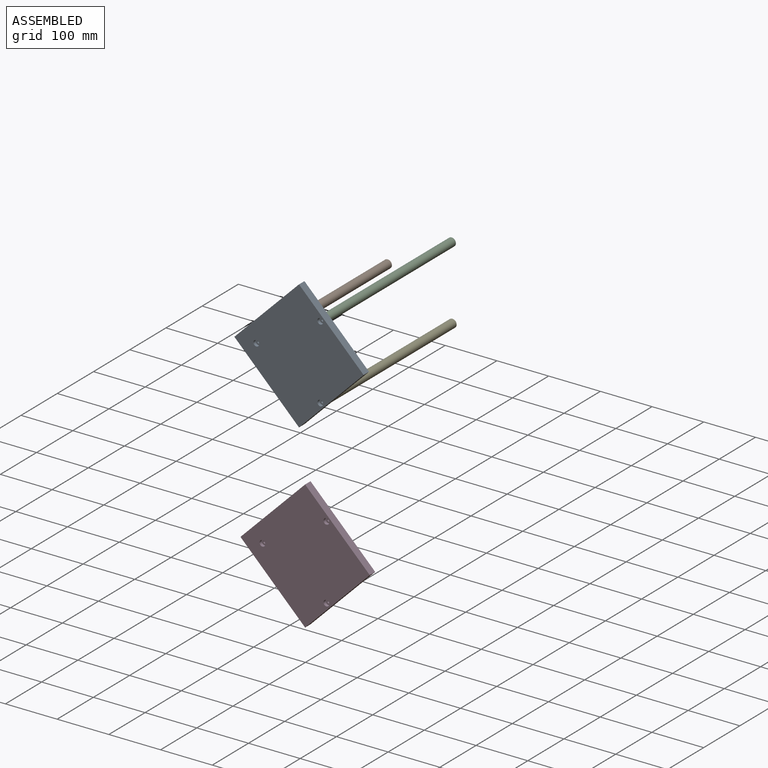
[diagram: assembled view]
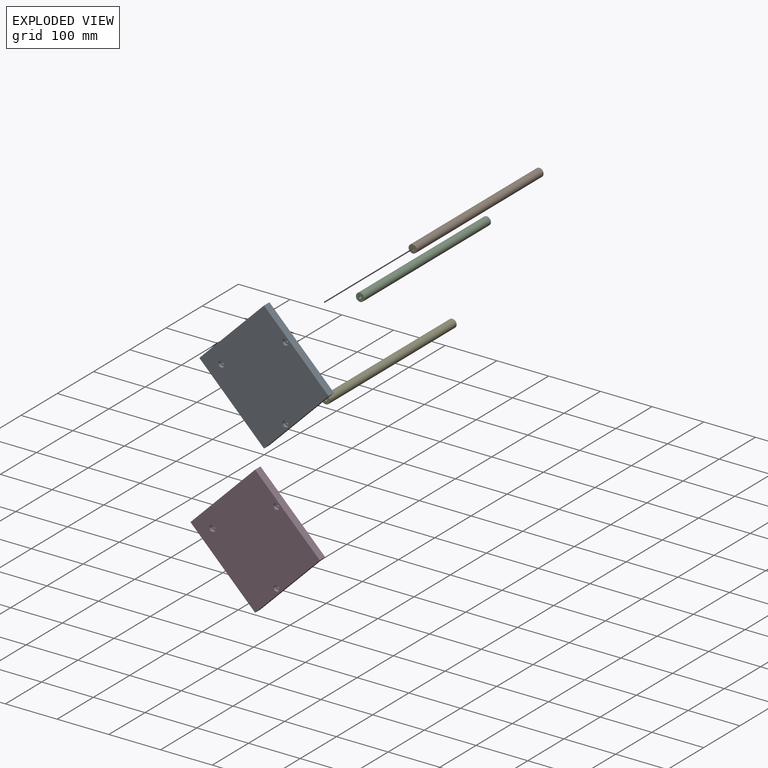
[diagram: exploded view]
GUIDED TOUR — MATED ASSEMBLY (Onshape document 1a43d66f72f9471675fd5f61, AutoMate assembly 1a43d66f72f9471675fd5f61_7ecb94784913f9cb2dae54af_32f8b393ca050b679fe28a52_default)

This assembly has 5 components, labeled P0..P4 below (a component is one placed occurrence of a part; the same part can appear more than once), held together by 3 mates. A mate is a constraint between two components; its type names the relative motion it leaves free:
  FASTENED — locks the two components together rigidly (no relative motion).
Axis/direction vectors are unit vectors and 'through' points are millimeter coordinates, both in the assembly's world frame.

MATES
  1. FASTENED "Fastened 1": P1 <-> P0, direction (0.000, -1.000, 0.000) through (-188.54, -96.07, -30.63) mm
  2. FASTENED "Fastened 3": P4 <-> P0, direction (0.000, 1.000, 0.000) through (-64.79, -94.07, -102.08) mm
  3. FASTENED "Fastened 2": P2 <-> P0, direction (0.000, -1.000, 0.000) through (-64.79, -96.07, 40.81) mm

ASSEMBLY ORDER
  1. P4 — the base component [order verified]
  2. P2 [order verified]
  3. P1 [order verified]
  4. P0 [order verified]
  5. P3 [order verified]
Order-tag legend:
  [order verified] — this step's position reverses a verified removal order: the component was checked to insert without passing through the ones already placed.

Of the 5 components, 5 carry the full construction recipe — the FeatureScript program that regenerates the part's solid from scratch; the rest are supplied as boundary geometry only.
Each toured component is shown spotlighted twice — in the assembled view, then in the exploded view, where a leader line traces a displaced component back to its assembled socket (saturated green if recipe-attached, orange if geometry-only; every other component desaturated gray) — followed by its recipe or geometry summary and the mates that hold it.
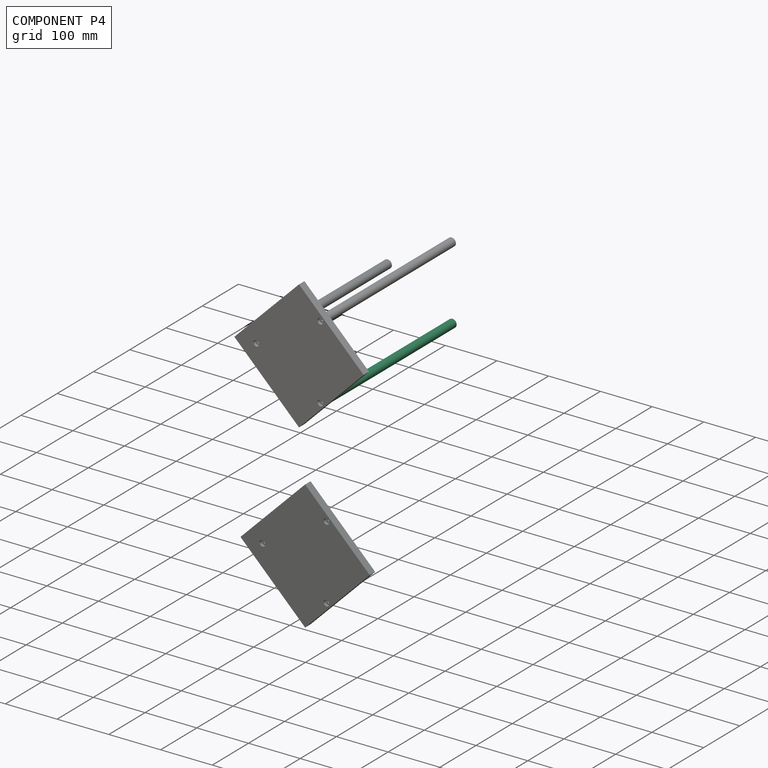
[diagram: component P4 — assembled]
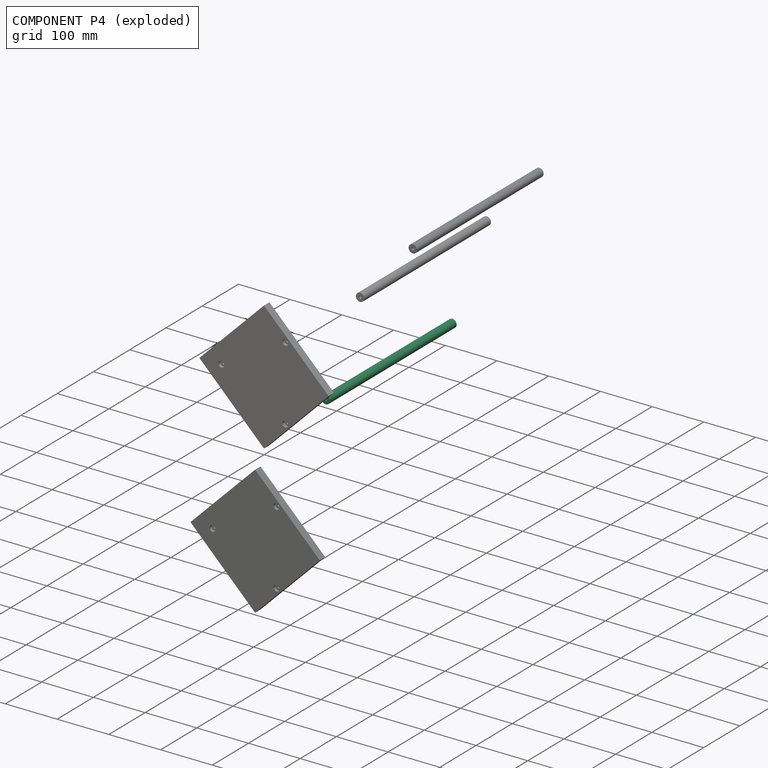
[diagram: component P4 — exploded]
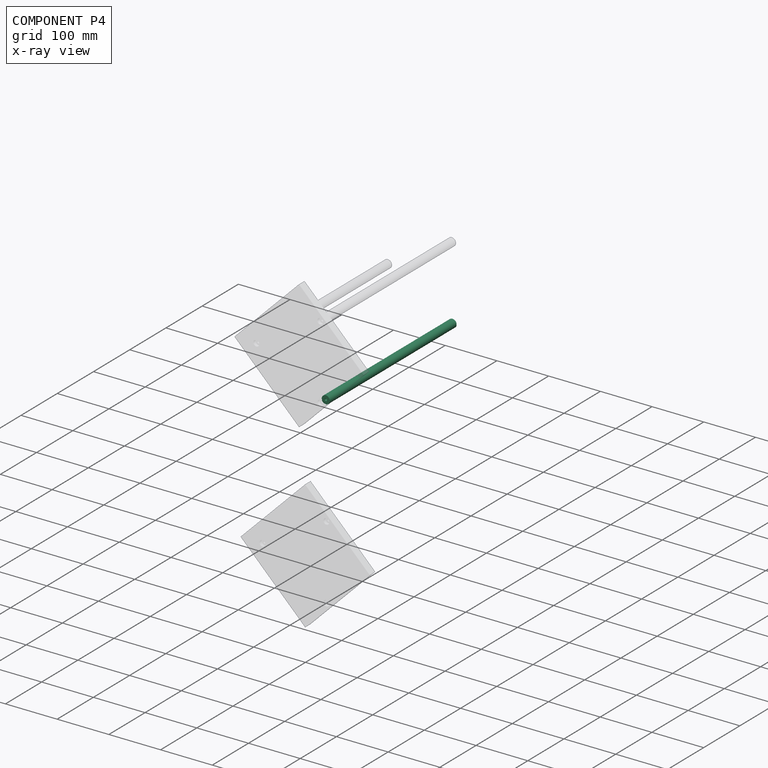
[diagram: component P4 — x-ray view]
COMPONENT P4 — same part as P1 (CADFS 00329744); its construction recipe is shown at P1.
Held by: FASTENED mate "Fastened 3" to P0.
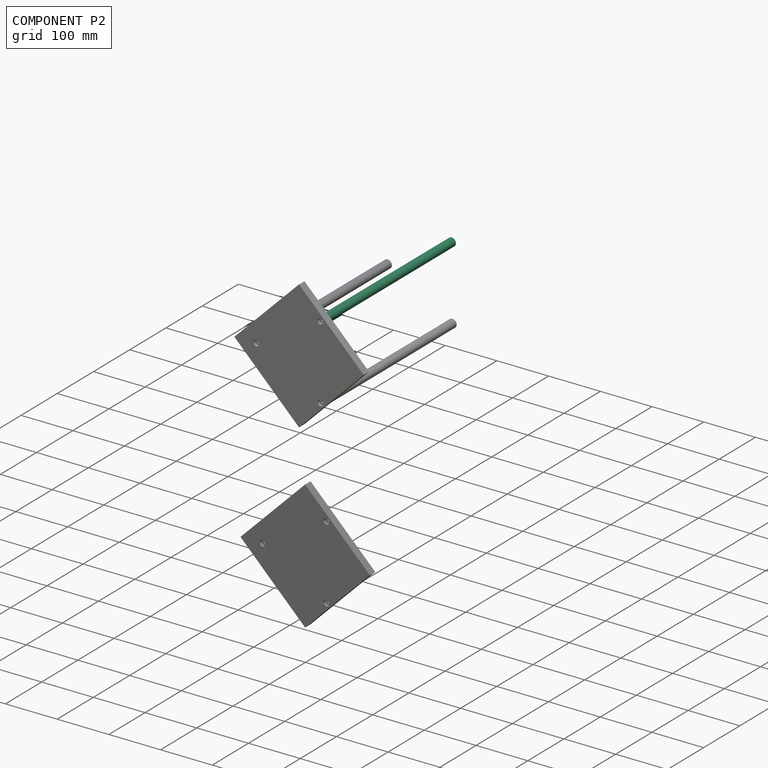
[diagram: component P2 — assembled]
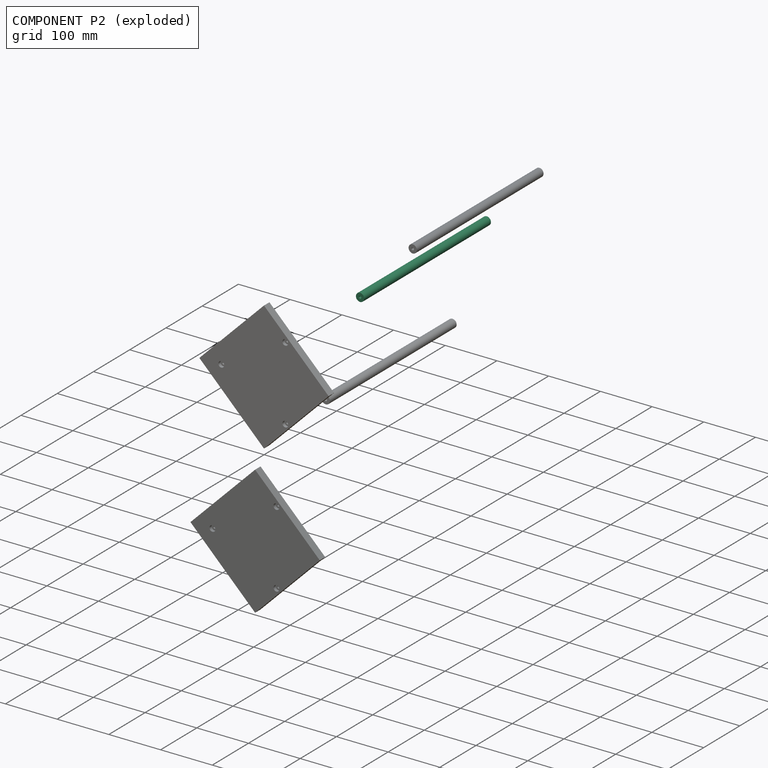
[diagram: component P2 — exploded]
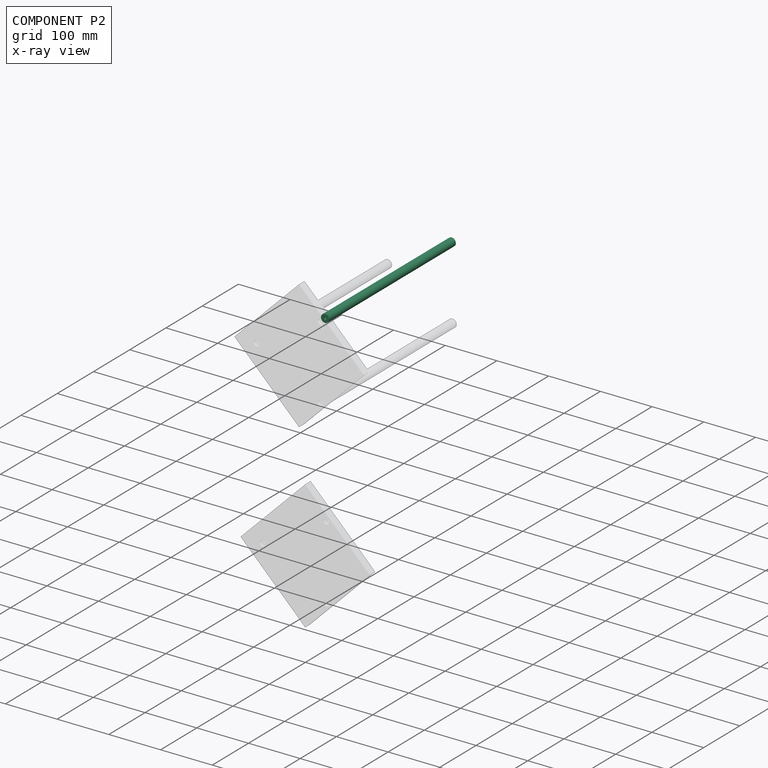
[diagram: component P2 — x-ray view]
COMPONENT P2 — same part as P1 (CADFS 00329744); its construction recipe is shown at P1.
Held by: FASTENED mate "Fastened 2" to P0.
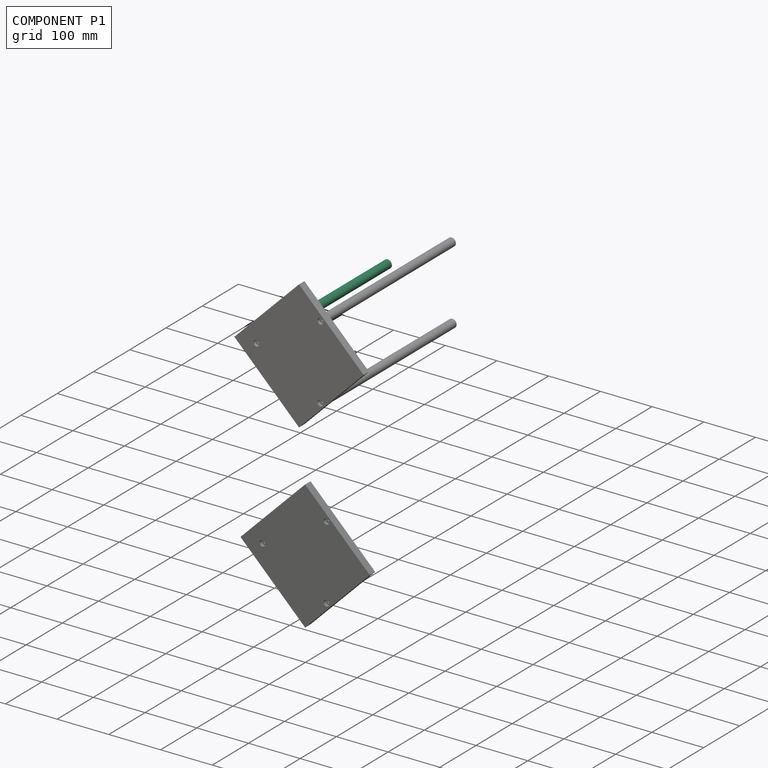
[diagram: component P1 — assembled]
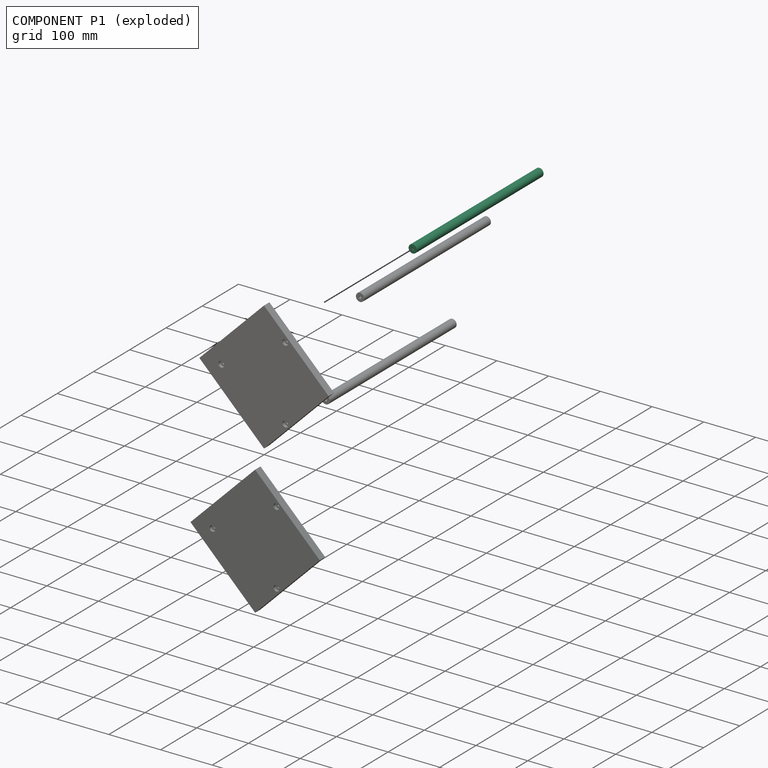
[diagram: component P1 — exploded]
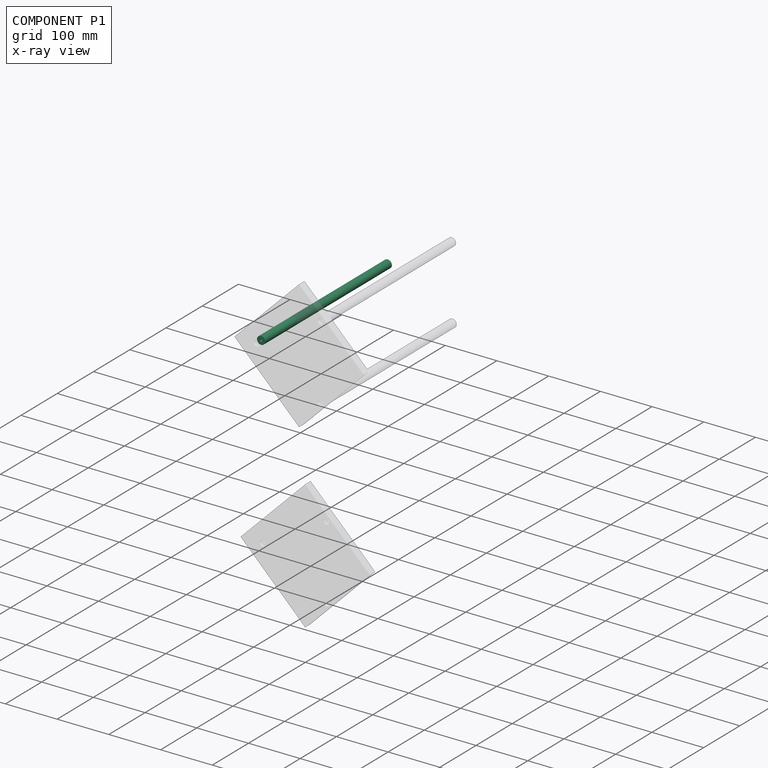
[diagram: component P1 — x-ray view]
COMPONENT P1 — recipe-attached (CADFS 00329744, mesh-verified: the recipe's output STEP matches this component's geometry to below the mesh-comparison resolution (tessellation chordal tolerance ~0.526 mm)).
Held by: FASTENED mate "Fastened 1" to P0.
Construction recipe (FeatureScript — the CAD program that rebuilds this solid; sketch coordinates are in the units given by the * unit suffixes, e.g. mm):

FeatureScript 1511;
import(path : "onshape/std/geometry.fs", version : "1511.0");
import(path : "onshape/std/common.fs", version : "1511.0");
const mm = millimeter;
const VERTEX = EntityType.VERTEX;
const EDGE = EntityType.EDGE;
const FACE = EntityType.FACE;
const BODY = EntityType.BODY;
function v(x, y){return vector(x, y);}
function OD(order){return orderDisambiguation(order);}
function OSD(set){return originalSetDisambiguation(set);}
function TD(topology){return topologyDisambiguation(topology);}
function TDD(query){return trueDependencyDisambiguation(query);}
function sQuery(a, b, c) {return sketchEntityQuery(a, b, c);}

annotation { "Feature Type Name" : "Feature", "Feature Type Description" : "" }
export const myFeature = defineFeature(function(context is Context, id is Id, definition is map)
    precondition{}
    {
        {
            var Q0;
            Q0=qCreatedBy(makeId("Front.planeOp"),FACE);
            var sketch = newSketch(context, id + "F0", { "sketchPlane" : qUnion([Q0])});
            skCircle(sketch, "E0", {"center": v(0, 0) * mm, "radius": 8 * mm});
            skLineSegment(sketch, "E1", {"start": v(0, 39.86) * mm, "end": v(0, -22.1) * mm, "construction": true});
            skLineSegment(sketch, "E2", {"start": v(0, -22.1) * mm, "end": v(44.9, 0) * mm, "construction": true});
            skLineSegment(sketch, "E3", {"start": v(44.9, 0) * mm, "end": v(-42.5, 0) * mm, "construction": true});
            skSolve(sketch);
        }
        {
            var Q0;
            Q0=qSketchRegion(id+"F0",true);
            extrude(context, id + "F1", {"entities" : qUnion([Q0]), "depth" : 350 * mm});
        }
        {
            var Q0;
            Q0=makeQuery(id+"F1.opExtrude","CAP_FACE",FACE,{"disambiguationData":[OSD([sQuery(id+"F0.wireOp",EDGE,"E0")])],"isStart":true});
            var sketch = newSketch(context, id + "F2", { "sketchPlane" : qUnion([Q0])});
            skPoint(sketch, "E4", {"position": v(0, 0) * mm});
            skSolve(sketch);
        }
        {
            var Q0;
            Q0=makeQuery(id+"F2.imprint","IMPRINT",FACE,{"disambiguationData":[TD([[makeQuery(id+"F2.imprint","IMPRINT",EDGE,{"derivedFrom":makeQuery(id+"F1.opExtrude","CAP_EDGE",EDGE,{"disambiguationData":[OSD([sQuery(id+"F0.wireOp",EDGE,"E0")])],"isStart":true})}),-1.0]])]});
            var sketch = newSketch(context, id + "F3", { "sketchPlane" : qUnion([Q0])});
            skPoint(sketch, "E5", {"position": v(0, 0) * mm});
            skSolve(sketch);
        }
        {
            var Q0;
            Q0=sQuery(id+"F3.wireOp",VERTEX,"E5");
            var Q1;
            Q1=makeQuery(id+"F1.opExtrude","SWEPT_BODY",BODY,{"disambiguationData":[OSD([sQuery(id+"F0.wireOp",EDGE,"E0")])]});
            hole(context, id + "F4", {"style" : HoleStyle.SIMPLE, "endStyle" : HoleEndStyle.BLIND, "standardTappedOrClearance" : lookupTablePath({ "standard" : "ISO", "engagement" : "75%", "pitch" : "1 mm", "size" : "M6", "type" : "Tapped" }), "standardBlindInLast" : lookupTablePath({ "standard" : "ISO", "engagement" : "75%", "pitch" : "1 mm", "size" : "M6", "type" : "Tapped" }), "holeDiameter" : 5 * mm, "showTappedDepth" : true, "holeDepth" : 16 * mm, "tappedDepth" : 15 * mm, "tapClearance" : 1, "locations" : qUnion([Q0]), "scope" : qUnion([Q1]), "majorDiameter" : 6 * mm});
        }
        {
            var Q0;
            Q0=makeQuery(id+"F1.opExtrude","CAP_FACE",FACE,{"disambiguationData":[OSD([sQuery(id+"F0.wireOp",EDGE,"E0")])],"isStart":false});
            var sketch = newSketch(context, id + "F5", { "sketchPlane" : qUnion([Q0])});
            skPoint(sketch, "E6", {"position": v(0, 0) * mm});
            skSolve(sketch);
        }
        {
            var Q0;
            Q0=sQuery(id+"F5.wireOp",VERTEX,"E6");
            var Q1;
            Q1=makeQuery(id+"F1.opExtrude","SWEPT_BODY",BODY,{"disambiguationData":[OSD([sQuery(id+"F0.wireOp",EDGE,"E0")])]});
            hole(context, id + "F6", {"style" : HoleStyle.SIMPLE, "endStyle" : HoleEndStyle.BLIND, "standardTappedOrClearance" : lookupTablePath({ "standard" : "ISO", "engagement" : "75%", "pitch" : "1 mm", "size" : "M6", "type" : "Tapped" }), "standardBlindInLast" : lookupTablePath({ "standard" : "ISO", "engagement" : "75%", "pitch" : "1 mm", "size" : "M6", "type" : "Tapped" }), "holeDiameter" : 5 * mm, "showTappedDepth" : true, "holeDepth" : 16 * mm, "tappedDepth" : 15 * mm, "tapClearance" : 1, "locations" : qUnion([Q0]), "scope" : qUnion([Q1]), "majorDiameter" : 6 * mm});
        }
    });
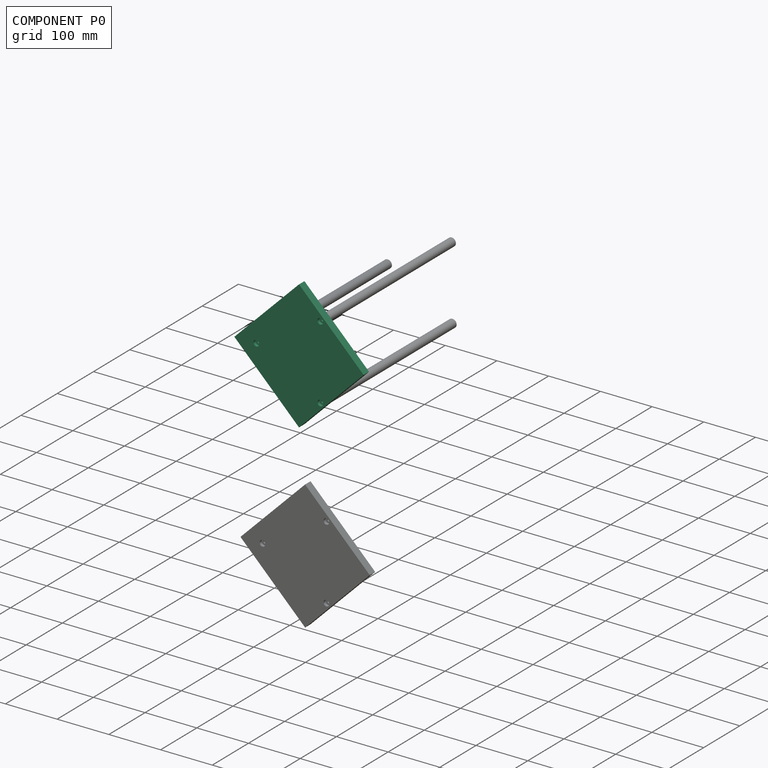
[diagram: component P0 — assembled]
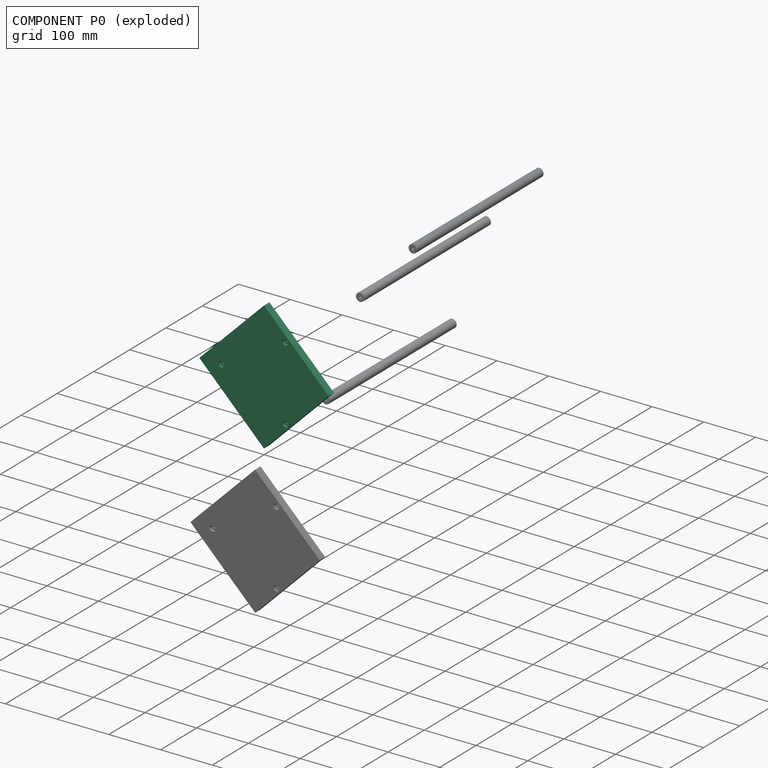
[diagram: component P0 — exploded]
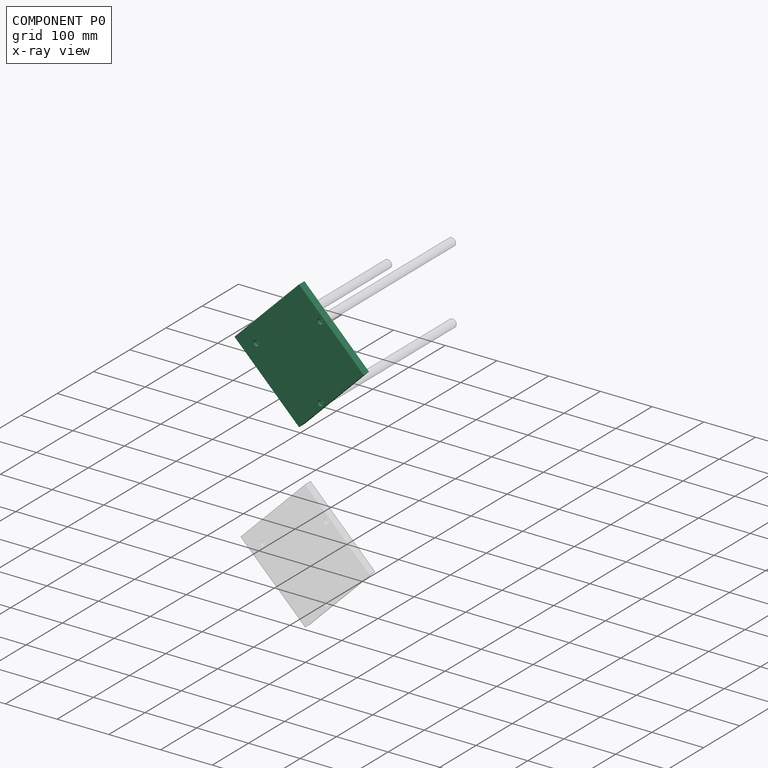
[diagram: component P0 — x-ray view]
COMPONENT P0 — recipe-attached (CADFS 00327594, mesh-verified: the recipe's output STEP matches this component's geometry to below the mesh-comparison resolution (tessellation chordal tolerance ~0.531 mm)).
Held by: FASTENED mate "Fastened 1" to P1; FASTENED mate "Fastened 3" to P4; FASTENED mate "Fastened 2" to P2.
Construction recipe (FeatureScript — the CAD program that rebuilds this solid; sketch coordinates are in the units given by the * unit suffixes, e.g. mm):

FeatureScript 1511;
import(path : "onshape/std/geometry.fs", version : "1511.0");
import(path : "onshape/std/common.fs", version : "1511.0");
const mm = millimeter;
const VERTEX = EntityType.VERTEX;
const EDGE = EntityType.EDGE;
const FACE = EntityType.FACE;
const BODY = EntityType.BODY;
function v(x, y){return vector(x, y);}
function OD(order){return orderDisambiguation(order);}
function OSD(set){return originalSetDisambiguation(set);}
function TD(topology){return topologyDisambiguation(topology);}
function TDD(query){return trueDependencyDisambiguation(query);}
function sQuery(a, b, c) {return sketchEntityQuery(a, b, c);}

annotation { "Feature Type Name" : "Feature", "Feature Type Description" : "" }
export const myFeature = defineFeature(function(context is Context, id is Id, definition is map)
    precondition{}
    {
        {
            var Q0;
            Q0=qCreatedBy(makeId("Front.planeOp"),FACE);
            var sketch = newSketch(context, id + "F0", { "sketchPlane" : qUnion([Q0])});
            skLineSegment(sketch, "E0", {"start": v(0, 111.82) * mm, "end": v(0, -93.68) * mm, "construction": true});
            skLineSegment(sketch, "E1", {"start": v(114.09, 0) * mm, "end": v(-79.4, 0) * mm, "construction": true});
            skLineSegment(sketch, "E2", {"start": v(0, 125) * mm, "end": v(-125, 0) * mm});
            skLineSegment(sketch, "E3", {"start": v(-125, 0) * mm, "end": v(0, -125) * mm});
            skLineSegment(sketch, "E4.MirrorCS", {"start": v(0, 125) * mm, "end": v(125, 0) * mm});
            skLineSegment(sketch, "E5.MirrorCS", {"start": v(125, 0) * mm, "end": v(0, -125) * mm});
            skSolve(sketch);
        }
        {
            var Q0;
            Q0 = qSketchRegion(id + "F0", true);
            extrude(context, id + "F1", {"entities" : qUnion([Q0]), "depth" : 15 * mm});
        }
        {
            var Q0;
            Q0=makeQuery(id+"F1.opExtrude","CAP_FACE",FACE,{"disambiguationData":[OSD([sQuery(id+"F0.wireOp",EDGE,"E2"),sQuery(id+"F0.wireOp",EDGE,"E3"),sQuery(id+"F0.wireOp",EDGE,"E4.MirrorCS"),sQuery(id+"F0.wireOp",EDGE,"E5.MirrorCS")])],"isStart":false});
            var sketch = newSketch(context, id + "F2", { "sketchPlane" : qUnion([Q0])});
            skLineSegment(sketch, "E6", {"start": v(-125, 0) * mm, "end": v(135.73, 0) * mm, "construction": true});
            skLineSegment(sketch, "E7", {"start": v(0, 125) * mm, "end": v(0, -142.51) * mm, "construction": true});
            skCircle(sketch, "E8", {"center": v(0, 0) * mm, "radius": 82.5 * mm, "construction": true});
            skLineSegment(sketch, "E9", {"start": v(0, 0) * mm, "end": v(61.34, -106.25) * mm, "construction": true});
            skLineSegment(sketch, "E10", {"start": v(0, 0) * mm, "end": v(59.96, 103.86) * mm, "construction": true});
            skPoint(sketch, "E11", {"position": v(-82.5, 0) * mm});
            skPoint(sketch, "E12", {"position": v(41.25, 71.45) * mm});
            skPoint(sketch, "E13", {"position": v(41.25, -71.45) * mm});
            skCircle(sketch, "E14", {"center": v(-82.5, 0) * mm, "radius": 8.05 * mm});
            skCircle(sketch, "E15", {"center": v(41.25, -71.45) * mm, "radius": 8.05 * mm});
            skCircle(sketch, "E16", {"center": v(41.25, 71.45) * mm, "radius": 8.05 * mm});
            skSolve(sketch);
        }
        {
            var Q0;
            Q0=sQuery(id+"F2.wireOp",VERTEX,"E11");
            var Q1;
            Q1=sQuery(id+"F2.wireOp",VERTEX,"E13");
            var Q2;
            Q2=sQuery(id+"F2.wireOp",VERTEX,"E12");
            var Q3;
            Q3=makeQuery(id+"F1.opExtrude","SWEPT_BODY",BODY,{"disambiguationData":[OSD([sQuery(id+"F0.wireOp",EDGE,"E2"),sQuery(id+"F0.wireOp",EDGE,"E3"),sQuery(id+"F0.wireOp",EDGE,"E4.MirrorCS"),sQuery(id+"F0.wireOp",EDGE,"E5.MirrorCS")])]});
            hole(context, id + "F3", {"style" : HoleStyle.C_BORE, "endStyle" : HoleEndStyle.THROUGH, "standardTappedOrClearance" : lookupTablePath({ "standard" : "ISO", "engagement" : "75%", "pitch" : "1 mm", "size" : "M6", "type" : "Tapped" }), "standardBlindInLast" : lookupTablePath({ "standard" : "ISO", "engagement" : "75%", "pitch" : "1 mm", "size" : "M6", "type" : "Tapped" }), "holeDiameter" : 5 * mm, "cBoreDiameter" : 11.25 * mm, "cBoreDepth" : 6 * mm, "showTappedDepth" : true, "tappedDepth" : 15 * mm, "tapClearance" : 1, "locations" : qUnion([Q0, Q1, Q2]), "scope" : qUnion([Q3]), "majorDiameter" : 6 * mm});
        }
        {
            var Q0;
            Q0=makeQuery(id+"F1.opExtrude","CAP_FACE",FACE,{"disambiguationData":[OSD([sQuery(id+"F0.wireOp",EDGE,"E2"),sQuery(id+"F0.wireOp",EDGE,"E3"),sQuery(id+"F0.wireOp",EDGE,"E4.MirrorCS"),sQuery(id+"F0.wireOp",EDGE,"E5.MirrorCS")])],"isStart":true});
            var sketch = newSketch(context, id + "F4", { "sketchPlane" : qUnion([Q0])});
            skCircle(sketch, "E17", {"center": v(82.5, 0) * mm, "radius": 8.05 * mm});
            skCircle(sketch, "E18", {"center": v(-41.25, -71.45) * mm, "radius": 8.05 * mm});
            skCircle(sketch, "E19", {"center": v(-41.25, 71.45) * mm, "radius": 8.05 * mm});
            skSolve(sketch);
        }
        {
            var Q0;
            Q0 = qSketchRegion(id + "F4", true);
            extrude(context, id + "F5", {"entities" : qUnion([Q0]), "operationType" : NewBodyOperationType.REMOVE, "oppositeDirection" : true, "depth" : 2 * mm});
        }
    });
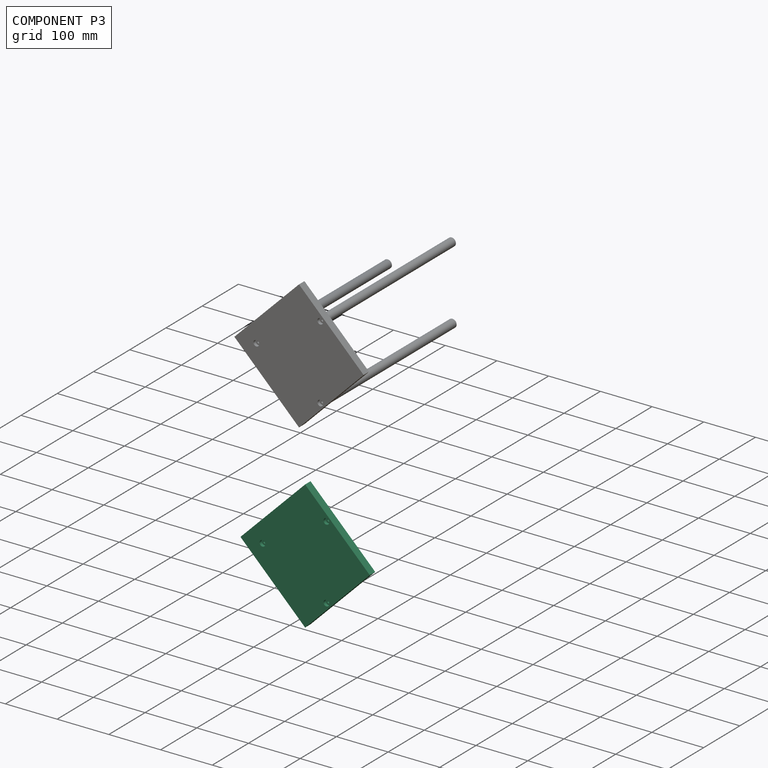
[diagram: component P3 — assembled]
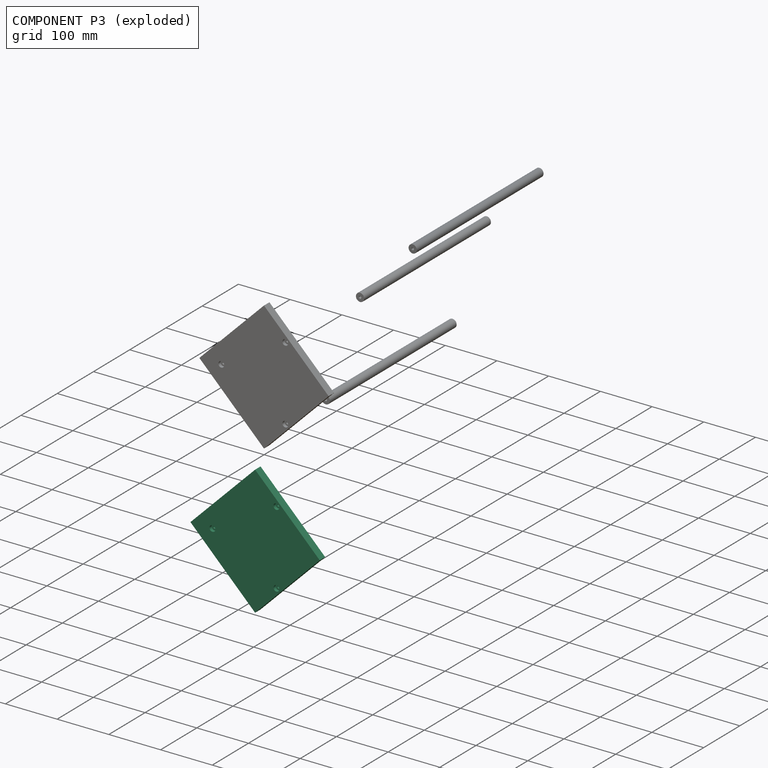
[diagram: component P3 — exploded]
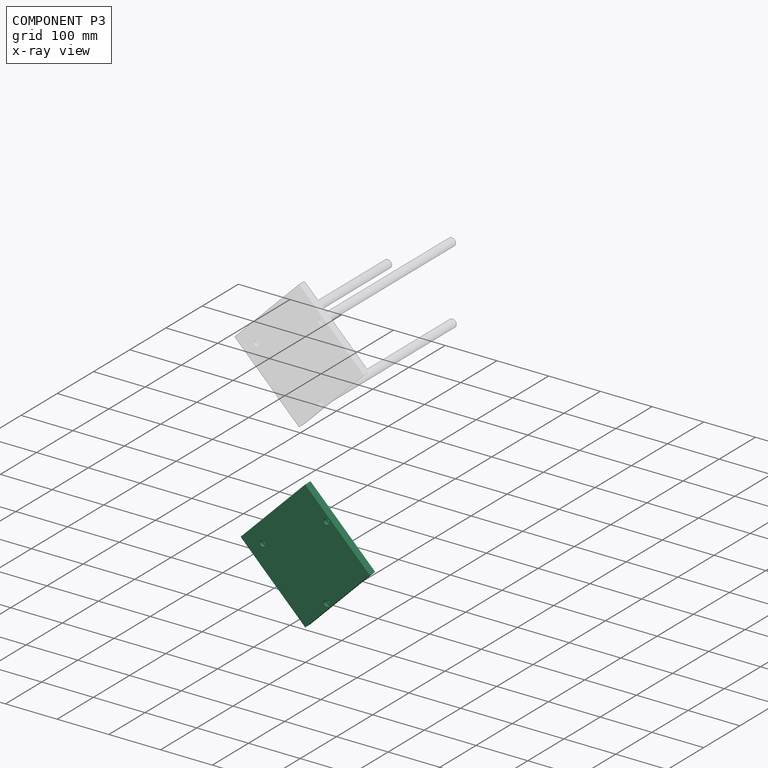
[diagram: component P3 — x-ray view]
COMPONENT P3 — same part as P0 (CADFS 00327594); its construction recipe is shown at P0.
Held by: no mates (free).
PROVENANCE & LICENSES
Assembly (occurrences, transforms, mates, per-part STEP geometry): AutoMate dataset, Zenodo record 7776208, CC0.
Construction recipes: CADFS (HuggingFace VladPyatov/CADFS, CC-BY-4.0, layered over the ABC dataset), FeatureScript reconstruction programs keyed by ABC model id.
Join: ABC meta listings map ABC model id -> Onshape documentId; within a shared document, parts are matched by geometric signature (bounding-box dims + volume at 0.1% relative tolerance, exact B-rep face/solid counts).
Verification: 5 of this assembly's 5 components carry a recipe attachment, and every attachment is mesh-verified: the CADFS STEP and the AutoMate member STEP were compared as meshes in their shared local frame (symmetric sampled-point-to-mesh distance); worst across the 5 attachments: below the mesh-comparison resolution (tessellation chordal tolerance ~0.531 mm) on a 354 mm part.
Renders: orthographic iso camera (az 35 / el 25); the floor grid conveys scale (grid pitch printed in each image; no ruler). In the exploded view each component is displaced by its stored offset vector: the offsets alone carry the explosion direction (mate normal/axis signs are not orientation cues and do not encode it), and separation distances are assigned per mate-chain, not proportionally to assembly-order depth.
